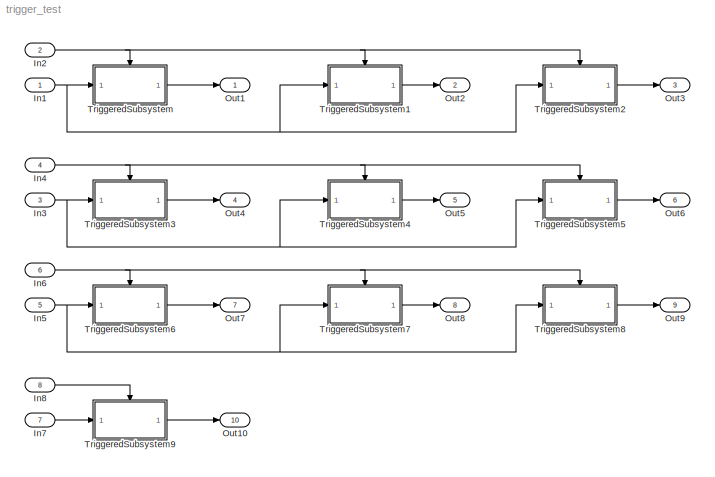
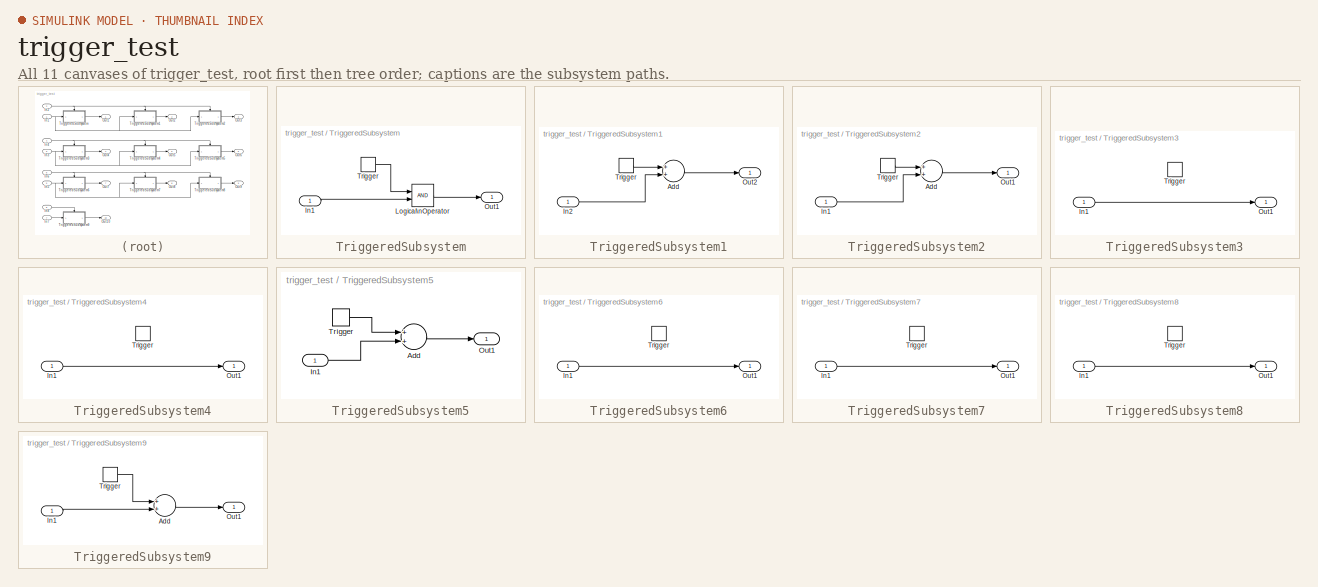
[diagram: thumbnail index - all 11 canvases of the model, root first then tree order]
MODEL trigger_test
KIND model
BLOCK [Inport] In1
  IconDisplay = Port number
  SID = 30
BLOCK [Inport] In2
  IconDisplay = Port number
  OutDataTypeStr = boolean
  Port = 2
  SID = 178
BLOCK [Inport] In3
  IconDisplay = Port number
  Port = 3
  SID = 293
BLOCK [Inport] In4
  IconDisplay = Port number
  OutDataTypeStr = int8
  Port = 4
  SID = 294
BLOCK [Inport] In5
  IconDisplay = Port number
  Port = 5
  SID = 310
BLOCK [Inport] In6
  IconDisplay = Port number
  OutDataTypeStr = double
  Port = 6
  SID = 311
BLOCK [Inport] In7
  IconDisplay = Port number
  Port = 7
  PortDimensions = 3
  SID = 336
BLOCK [Inport] In8
  IconDisplay = Port number
  OutDataTypeStr = boolean
  Port = 8
  SID = 337
BLOCK [Outport] Out1
  IconDisplay = Port number
  SID = 32
BLOCK [Outport] Out10
  IconDisplay = Port number
  Port = 10
  SID = 343
BLOCK [Outport] Out2
  IconDisplay = Port number
  Port = 2
  SID = 290
BLOCK [Outport] Out3
  IconDisplay = Port number
  Port = 3
  SID = 291
BLOCK [Outport] Out4
  IconDisplay = Port number
  Port = 4
  SID = 307
BLOCK [Outport] Out5
  IconDisplay = Port number
  Port = 5
  SID = 308
BLOCK [Outport] Out6
  IconDisplay = Port number
  Port = 6
  SID = 309
BLOCK [Outport] Out7
  IconDisplay = Port number
  Port = 7
  SID = 324
BLOCK [Outport] Out8
  IconDisplay = Port number
  Port = 8
  SID = 325
BLOCK [Outport] Out9
  IconDisplay = Port number
  Port = 9
  SID = 326
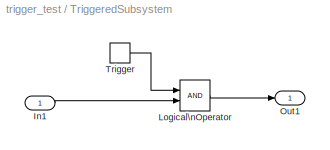
BLOCK [SubSystem] TriggeredSubsystem
  Ports = [1, 1, 0, 1]
  RequestExecContextInheritance = off
  SID = 168
  TreatAsAtomicUnit = on
  Variant = off
BLOCK [Inport] TriggeredSubsystem/In1
  IconDisplay = Port number
  SID = 169
BLOCK [Logic] TriggeredSubsystem/Logical\nOperator
  AllPortsSameDT = off
  OutDataTypeStr = boolean
  Ports = [2, 1]
  SID = 335
BLOCK [Outport] TriggeredSubsystem/Out1
  IconDisplay = Port number
  SID = 171
BLOCK [TriggerPort] TriggeredSubsystem/Trigger
  PortDimensions = 1
  Ports = [0, 1]
  SID = 262
  ShowOutputPort = on
  StatesWhenEnabling = held
  VariantControl = (inherit)
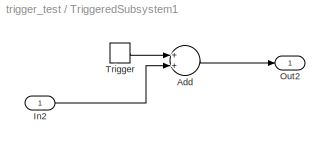
BLOCK [SubSystem] TriggeredSubsystem1
  Ports = [1, 1, 0, 1]
  RequestExecContextInheritance = off
  SID = 270
  TreatAsAtomicUnit = on
  Variant = off
BLOCK [Sum] TriggeredSubsystem1/Add
  InputSameDT = off
  OutDataTypeStr = Inherit: Inherit via internal rule
  Ports = [2, 1]
  SID = 330
  SaturateOnIntegerOverflow = off
BLOCK [Inport] TriggeredSubsystem1/In2
  IconDisplay = Port number
  SID = 329
BLOCK [Outport] TriggeredSubsystem1/Out2
  IconDisplay = Port number
  SID = 331
BLOCK [TriggerPort] TriggeredSubsystem1/Trigger
  PortDimensions = 1
  Ports = [0, 1]
  SID = 272
  ShowOutputPort = on
  StatesWhenEnabling = held
  TriggerType = falling
  VariantControl = (inherit)
BLOCK [SubSystem] TriggeredSubsystem2
  Ports = [1, 1, 0, 1]
  RequestExecContextInheritance = off
  SID = 274
  TreatAsAtomicUnit = on
  Variant = off
BLOCK [Sum] TriggeredSubsystem2/Add
  InputSameDT = off
  OutDataTypeStr = Inherit: Inherit via internal rule
  Ports = [2, 1]
  SID = 333
  SaturateOnIntegerOverflow = off
BLOCK [Inport] TriggeredSubsystem2/In1
  IconDisplay = Port number
  SID = 332
BLOCK [Outport] TriggeredSubsystem2/Out1
  IconDisplay = Port number
  SID = 334
BLOCK [TriggerPort] TriggeredSubsystem2/Trigger
  PortDimensions = 1
  Ports = [0, 1]
  SID = 276
  ShowOutputPort = on
  StatesWhenEnabling = held
  TriggerType = either
  VariantControl = (inherit)
BLOCK [SubSystem] TriggeredSubsystem3
  Ports = [1, 1, 0, 1]
  RequestExecContextInheritance = off
  SID = 295
  TreatAsAtomicUnit = on
  Variant = off
BLOCK [Inport] TriggeredSubsystem3/In1
  IconDisplay = Port number
  SID = 296
BLOCK [Outport] TriggeredSubsystem3/Out1
  IconDisplay = Port number
  SID = 298
BLOCK [TriggerPort] TriggeredSubsystem3/Trigger
  PortDimensions = 1
  Ports = []
  SID = 297
  StatesWhenEnabling = held
  VariantControl = (inherit)
BLOCK [SubSystem] TriggeredSubsystem4
  Ports = [1, 1, 0, 1]
  RequestExecContextInheritance = off
  SID = 299
  TreatAsAtomicUnit = on
  Variant = off
BLOCK [Inport] TriggeredSubsystem4/In1
  IconDisplay = Port number
  SID = 300
BLOCK [Outport] TriggeredSubsystem4/Out1
  IconDisplay = Port number
  SID = 302
BLOCK [TriggerPort] TriggeredSubsystem4/Trigger
  PortDimensions = 1
  Ports = []
  SID = 301
  StatesWhenEnabling = held
  TriggerType = falling
  VariantControl = (inherit)
BLOCK [SubSystem] TriggeredSubsystem5
  Ports = [1, 1, 0, 1]
  RequestExecContextInheritance = off
  SID = 303
  TreatAsAtomicUnit = on
  Variant = off
BLOCK [Sum] TriggeredSubsystem5/Add
  InputSameDT = off
  OutDataTypeStr = Inherit: Inherit via internal rule
  Ports = [2, 1]
  SID = 349
  SaturateOnIntegerOverflow = off
BLOCK [Inport] TriggeredSubsystem5/In1
  IconDisplay = Port number
  SID = 304
BLOCK [Outport] TriggeredSubsystem5/Out1
  IconDisplay = Port number
  SID = 306
BLOCK [TriggerPort] TriggeredSubsystem5/Trigger
  PortDimensions = 1
  Ports = [0, 1]
  SID = 305
  ShowOutputPort = on
  StatesWhenEnabling = held
  TriggerType = either
  VariantControl = (inherit)
BLOCK [SubSystem] TriggeredSubsystem6
  Ports = [1, 1, 0, 1]
  RequestExecContextInheritance = off
  SID = 312
  TreatAsAtomicUnit = on
  Variant = off
BLOCK [Inport] TriggeredSubsystem6/In1
  IconDisplay = Port number
  SID = 313
BLOCK [Outport] TriggeredSubsystem6/Out1
  IconDisplay = Port number
  SID = 315
BLOCK [TriggerPort] TriggeredSubsystem6/Trigger
  PortDimensions = 1
  Ports = []
  SID = 314
  StatesWhenEnabling = held
  VariantControl = (inherit)
BLOCK [SubSystem] TriggeredSubsystem7
  Ports = [1, 1, 0, 1]
  RequestExecContextInheritance = off
  SID = 316
  TreatAsAtomicUnit = on
  Variant = off
BLOCK [Inport] TriggeredSubsystem7/In1
  IconDisplay = Port number
  SID = 317
BLOCK [Outport] TriggeredSubsystem7/Out1
  IconDisplay = Port number
  SID = 319
BLOCK [TriggerPort] TriggeredSubsystem7/Trigger
  PortDimensions = 1
  Ports = []
  SID = 318
  StatesWhenEnabling = held
  TriggerType = falling
  VariantControl = (inherit)
BLOCK [SubSystem] TriggeredSubsystem8
  Ports = [1, 1, 0, 1]
  RequestExecContextInheritance = off
  SID = 320
  TreatAsAtomicUnit = on
  Variant = off
BLOCK [Inport] TriggeredSubsystem8/In1
  IconDisplay = Port number
  SID = 321
BLOCK [Outport] TriggeredSubsystem8/Out1
  IconDisplay = Port number
  SID = 323
BLOCK [TriggerPort] TriggeredSubsystem8/Trigger
  PortDimensions = 1
  Ports = []
  SID = 322
  StatesWhenEnabling = held
  TriggerType = either
  VariantControl = (inherit)
BLOCK [SubSystem] TriggeredSubsystem9
  Ports = [1, 1, 0, 1]
  RequestExecContextInheritance = off
  SID = 338
  TreatAsAtomicUnit = on
  Variant = off
BLOCK [Sum] TriggeredSubsystem9/Add
  InputSameDT = off
  OutDataTypeStr = Inherit: Inherit via internal rule
  Ports = [2, 1]
  SID = 348
  SaturateOnIntegerOverflow = off
BLOCK [Inport] TriggeredSubsystem9/In1
  IconDisplay = Port number
  SID = 339
BLOCK [Outport] TriggeredSubsystem9/Out1
  IconDisplay = Port number
  SID = 342
BLOCK [TriggerPort] TriggeredSubsystem9/Trigger
  PortDimensions = 1
  Ports = [0, 1]
  SID = 340
  ShowOutputPort = on
  StatesWhenEnabling = held
  TriggerType = either
  VariantControl = (inherit)
NET In1:1 -> TriggeredSubsystem1:1, TriggeredSubsystem2:1, TriggeredSubsystem:1
NET In2:1 -> TriggeredSubsystem1:trigger, TriggeredSubsystem2:trigger, TriggeredSubsystem:trigger
NET In3:1 -> TriggeredSubsystem3:1, TriggeredSubsystem4:1, TriggeredSubsystem5:1
NET In4:1 -> TriggeredSubsystem3:trigger, TriggeredSubsystem4:trigger, TriggeredSubsystem5:trigger
NET In5:1 -> TriggeredSubsystem6:1, TriggeredSubsystem7:1, TriggeredSubsystem8:1
NET In6:1 -> TriggeredSubsystem6:trigger, TriggeredSubsystem7:trigger, TriggeredSubsystem8:trigger
LINE In7:1 -> TriggeredSubsystem9:1
LINE In8:1 -> TriggeredSubsystem9:trigger
LINE TriggeredSubsystem/In1:1 -> TriggeredSubsystem/Logical\nOperator:2
LINE TriggeredSubsystem/Logical\nOperator:1 -> TriggeredSubsystem/Out1:1
LINE TriggeredSubsystem/Trigger:1 -> TriggeredSubsystem/Logical\nOperator:1
LINE TriggeredSubsystem1/Add:1 -> TriggeredSubsystem1/Out2:1
LINE TriggeredSubsystem1/In2:1 -> TriggeredSubsystem1/Add:2
LINE TriggeredSubsystem1/Trigger:1 -> TriggeredSubsystem1/Add:1
LINE TriggeredSubsystem1:1 -> Out2:1
LINE TriggeredSubsystem2/Add:1 -> TriggeredSubsystem2/Out1:1
LINE TriggeredSubsystem2/In1:1 -> TriggeredSubsystem2/Add:2
LINE TriggeredSubsystem2/Trigger:1 -> TriggeredSubsystem2/Add:1
LINE TriggeredSubsystem2:1 -> Out3:1
LINE TriggeredSubsystem3/In1:1 -> TriggeredSubsystem3/Out1:1
LINE TriggeredSubsystem3:1 -> Out4:1
LINE TriggeredSubsystem4/In1:1 -> TriggeredSubsystem4/Out1:1
LINE TriggeredSubsystem4:1 -> Out5:1
LINE TriggeredSubsystem5/Add:1 -> TriggeredSubsystem5/Out1:1
LINE TriggeredSubsystem5/In1:1 -> TriggeredSubsystem5/Add:2
LINE TriggeredSubsystem5/Trigger:1 -> TriggeredSubsystem5/Add:1
LINE TriggeredSubsystem5:1 -> Out6:1
LINE TriggeredSubsystem6/In1:1 -> TriggeredSubsystem6/Out1:1
LINE TriggeredSubsystem6:1 -> Out7:1
LINE TriggeredSubsystem7/In1:1 -> TriggeredSubsystem7/Out1:1
LINE TriggeredSubsystem7:1 -> Out8:1
LINE TriggeredSubsystem8/In1:1 -> TriggeredSubsystem8/Out1:1
LINE TriggeredSubsystem8:1 -> Out9:1
LINE TriggeredSubsystem9/Add:1 -> TriggeredSubsystem9/Out1:1
LINE TriggeredSubsystem9/In1:1 -> TriggeredSubsystem9/Add:2
LINE TriggeredSubsystem9/Trigger:1 -> TriggeredSubsystem9/Add:1
LINE TriggeredSubsystem9:1 -> Out10:1
LINE TriggeredSubsystem:1 -> Out1:1
note: NET lines group one-source signal fan-out (src -> all destinations, sorted); 1:1 wires keep LINE
